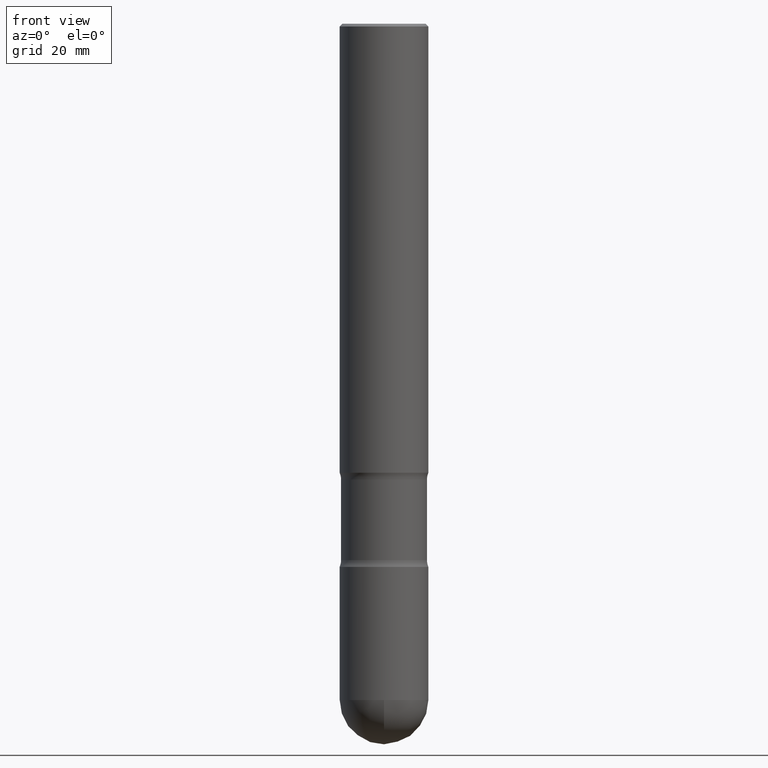
[diagram: clean part render]
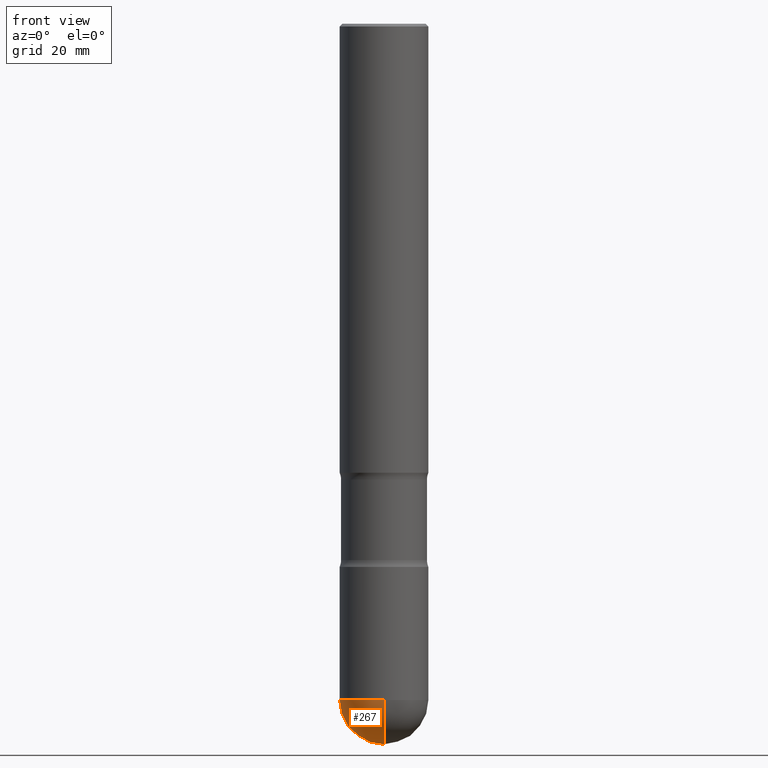
[diagram: same view with one face highlighted and labeled with its STEP entity id]
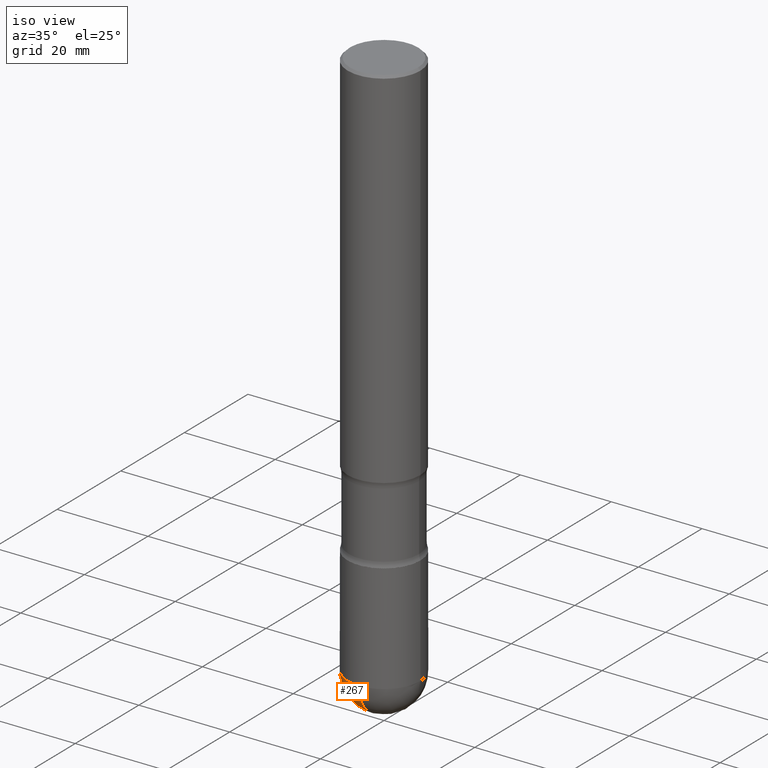
[diagram: same view with one face highlighted and labeled with its STEP entity id]
A machine part, front view. The second image highlights one B-rep face of the part: STEP entity #267.
A second angle (iso view) of the same face is appended — the face is thin or edge-on in the first view.
In plain terms, the highlighted spherical surface has radius 7.9997 mm.
Its self-contained STEP definition (entity closure, byte-faithful):
#13 = ORIENTED_EDGE ( 'NONE', *, *, #96, .F. ) ;
#26 = CARTESIAN_POINT ( 'NONE',  ( -2.237854346276313317E-15, -0.3149500000000162170, -4.803149999999999586 ) ) ;
#28 = CARTESIAN_POINT ( 'NONE',  ( 1.171902003415043533E-28, -1.680867884360359967E-14, -4.803150000000000475 ) ) ;
#29 = CIRCLE ( 'NONE', #378, 0.3149499999999996191 ) ;
#32 = EDGE_LOOP ( 'NONE', ( #77, #523, #13, #84 ) ) ;
#64 = AXIS2_PLACEMENT_3D ( 'NONE', #187, #102, #498 ) ;
#76 = CARTESIAN_POINT ( 'NONE',  ( 2.199284095337402284E-15, 0.3149499999999825772, -4.803150000000001363 ) ) ;
#77 = ORIENTED_EDGE ( 'NONE', *, *, #261, .F. ) ;
#84 = ORIENTED_EDGE ( 'NONE', *, *, #516, .F. ) ;
#90 = VERTEX_POINT ( 'NONE', #235 ) ;
#96 = EDGE_CURVE ( 'NONE', #259, #221, #456, .T. ) ;
#102 = DIRECTION ( 'NONE',  ( -2.445468806185136597E-29, 3.491481338843145583E-15, 1.000000000000000000 ) ) ;
#109 = SPHERICAL_SURFACE ( 'NONE', #255, 0.3149499999999996191 ) ;
#161 = DIRECTION ( 'NONE',  ( -7.105427357600999492E-15, -1.000000000000000000, 0.000000000000000000 ) ) ;
#163 = CARTESIAN_POINT ( 'NONE',  ( 1.171902003415043533E-28, -1.680867884360359967E-14, -4.803150000000000475 ) ) ;
#166 = DIRECTION ( 'NONE',  ( 1.000000000000000000, -6.982962677686264344E-15, 0.000000000000000000 ) ) ;
#187 = CARTESIAN_POINT ( 'NONE',  ( 1.174595349642814099E-28, -1.677010859266445514E-14, -4.803150000000000475 ) ) ;
#200 = DIRECTION ( 'NONE',  ( -1.000000000000000000, 7.105427357601001070E-15, -4.926315508542082329E-29 ) ) ;
#221 = VERTEX_POINT ( 'NONE', #26 ) ;
#235 = CARTESIAN_POINT ( 'NONE',  ( 1.250268716579729628E-28, -1.788903576580267786E-14, -5.118100000000000094 ) ) ;
#243 = EDGE_CURVE ( 'NONE', #90, #221, #29, .T. ) ;
#255 = AXIS2_PLACEMENT_3D ( 'NONE', #163, #337, #381 ) ;
#259 = VERTEX_POINT ( 'NONE', #511 ) ;
#260 = CARTESIAN_POINT ( 'NONE',  ( 1.174595349642814099E-28, -1.677010859266445514E-14, -4.803150000000000475 ) ) ;
#261 = EDGE_CURVE ( 'NONE', #90, #442, #428, .T. ) ;
#267 = ADVANCED_FACE ( 'NONE', ( #551 ), #109, .T. ) ;
#313 = DIRECTION ( 'NONE',  ( -2.445468806185136597E-29, 3.491481338843145583E-15, 1.000000000000000000 ) ) ;
#337 = DIRECTION ( 'NONE',  ( -1.000000000000000000, 6.982962677686266711E-15, -4.883557194083112901E-29 ) ) ;
#342 = AXIS2_PLACEMENT_3D ( 'NONE', #260, #313, #166 ) ;
#378 = AXIS2_PLACEMENT_3D ( 'NONE', #509, #200, #161 ) ;
#381 = DIRECTION ( 'NONE',  ( 6.982962677686266711E-15, 1.000000000000000000, -3.469564049740297503E-15 ) ) ;
#428 = CIRCLE ( 'NONE', #502, 0.3149499999999996191 ) ;
#442 = VERTEX_POINT ( 'NONE', #76 ) ;
#456 = CIRCLE ( 'NONE', #64, 0.3149499999999991751 ) ;
#463 = DIRECTION ( 'NONE',  ( 6.982962677686265922E-15, 1.000000000000000000, 0.000000000000000000 ) ) ;
#473 = DIRECTION ( 'NONE',  ( 1.000000000000000000, -6.982962677686265922E-15, 4.883557194083112340E-29 ) ) ;
#486 = CIRCLE ( 'NONE', #342, 0.3149499999999991751 ) ;
#498 = DIRECTION ( 'NONE',  ( 1.000000000000000000, -6.982962677686264344E-15, 0.000000000000000000 ) ) ;
#502 = AXIS2_PLACEMENT_3D ( 'NONE', #28, #473, #463 ) ;
#509 = CARTESIAN_POINT ( 'NONE',  ( 1.171902003415043533E-28, -1.680867884360359967E-14, -4.803150000000000475 ) ) ;
#511 = CARTESIAN_POINT ( 'NONE',  ( -0.3149499999999991751, -1.288279117488505451E-14, -4.803150000000000475 ) ) ;
#516 = EDGE_CURVE ( 'NONE', #442, #259, #486, .T. ) ;
#523 = ORIENTED_EDGE ( 'NONE', *, *, #243, .T. ) ;
#551 = FACE_OUTER_BOUND ( 'NONE', #32, .T. ) ;